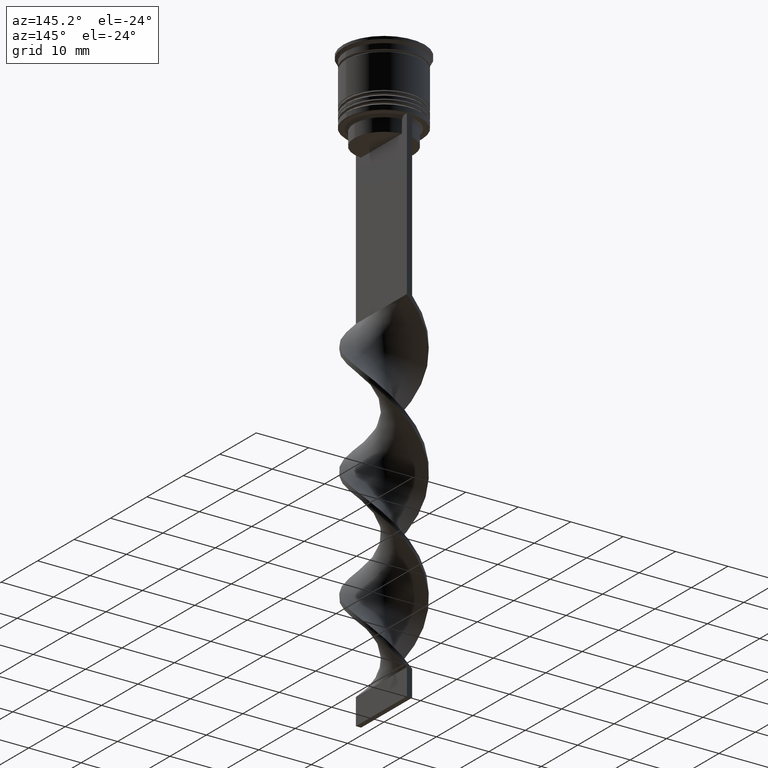
[diagram: clean part render]
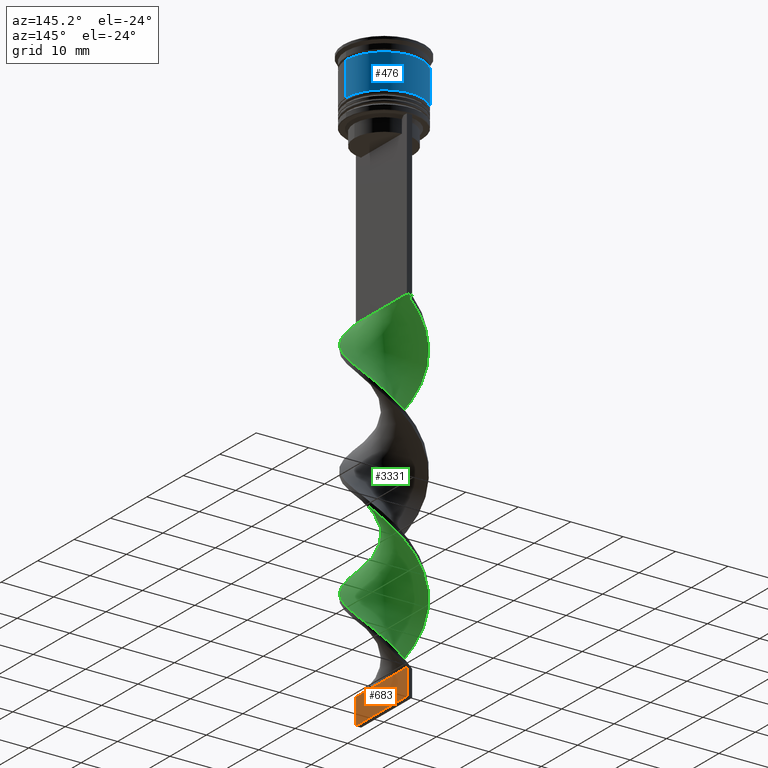
[diagram: same view with three faces highlighted in distinct colors, each labeled with its STEP entity id]
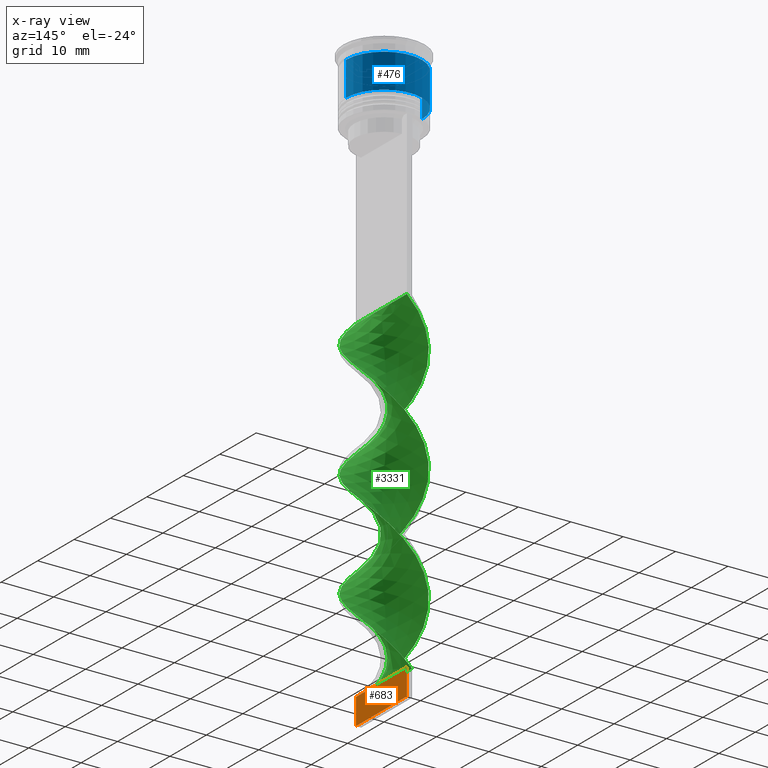
[diagram: x-ray of the same camera — body ghosted, the three highlighted faces saturated]
A machine part, auxiliary view with three faces highlighted in distinct colors.
The next image is the same camera in x-ray (body ghosted, the three faces saturated) — at least one of them is partly hidden behind the body in this view.
Their STEP definitions:

[orange] entity #683 — the highlighted planar face has unit normal (-1, 0, 0).
#10 = VECTOR ( 'NONE', #3414, 1000.000000000000000 ) ;
#71 = PLANE ( 'NONE',  #3364 ) ;
#137 = VECTOR ( 'NONE', #1067, 1000.000000000000000 ) ;
#177 = CARTESIAN_POINT ( 'NONE',  ( 0.5000000000000008882, 6.999999999999997335, -107.5000000000000000 ) ) ;
#181 = CARTESIAN_POINT ( 'NONE',  ( 0.4999999999999991673, -7.000000000000002665, -112.5000000000000000 ) ) ;
#270 = EDGE_CURVE ( 'NONE', #1339, #1523, #1974, .T. ) ;
#465 = LINE ( 'NONE', #2087, #137 ) ;
#469 = VECTOR ( 'NONE', #3056, 1000.000000000000000 ) ;
#525 = VERTEX_POINT ( 'NONE', #181 ) ;
#616 = ORIENTED_EDGE ( 'NONE', *, *, #762, .T. ) ;
#683 = ADVANCED_FACE ( 'NONE', ( #1455 ), #71, .F. ) ;
#745 = EDGE_CURVE ( 'NONE', #1339, #525, #1822, .T. ) ;
#760 = EDGE_LOOP ( 'NONE', ( #616, #2088, #2721, #1303 ) ) ;
#762 = EDGE_CURVE ( 'NONE', #1523, #1484, #2705, .T. ) ;
#1067 = DIRECTION ( 'NONE',  ( -0.000000000000000000, -0.000000000000000000, 1.000000000000000000 ) ) ;
#1169 = CARTESIAN_POINT ( 'NONE',  ( 0.5000000000000008882, 6.999999999999997335, -112.5000000000000000 ) ) ;
#1252 = CARTESIAN_POINT ( 'NONE',  ( 0.5000000000000008882, 6.999999999999997335, -107.5000000000000000 ) ) ;
#1303 = ORIENTED_EDGE ( 'NONE', *, *, #270, .T. ) ;
#1330 = CARTESIAN_POINT ( 'NONE',  ( 0.5000000000000008882, 6.999999999999997335, -112.5000000000000000 ) ) ;
#1339 = VERTEX_POINT ( 'NONE', #2330 ) ;
#1455 = FACE_OUTER_BOUND ( 'NONE', #760, .T. ) ;
#1484 = VERTEX_POINT ( 'NONE', #2947 ) ;
#1523 = VERTEX_POINT ( 'NONE', #1252 ) ;
#1549 = CARTESIAN_POINT ( 'NONE',  ( 0.4999999999999996669, -2.333333333333336590, -107.5000000000000000 ) ) ;
#1703 = CARTESIAN_POINT ( 'NONE',  ( 0.5000000000000008882, 6.999999999999997335, -112.5000000000000000 ) ) ;
#1822 = LINE ( 'NONE', #1330, #10 ) ;
#1974 = LINE ( 'NONE', #1703, #469 ) ;
#2087 = CARTESIAN_POINT ( 'NONE',  ( 0.4999999999999991673, -7.000000000000002665, -112.5000000000000000 ) ) ;
#2088 = ORIENTED_EDGE ( 'NONE', *, *, #2193, .F. ) ;
#2193 = EDGE_CURVE ( 'NONE', #525, #1484, #465, .T. ) ;
#2239 = DIRECTION ( 'NONE',  ( -1.000000000000000000, 1.239088197126290817E-16, 0.000000000000000000 ) ) ;
#2330 = CARTESIAN_POINT ( 'NONE',  ( 0.5000000000000008882, 6.999999999999997335, -112.5000000000000000 ) ) ;
#2397 = CARTESIAN_POINT ( 'NONE',  ( 0.5000000000000003331, 2.333333333333331261, -107.5000000000000000 ) ) ;
#2593 = CARTESIAN_POINT ( 'NONE',  ( 0.4999999999999991673, -7.000000000000002665, -107.5000000000000000 ) ) ;
#2705 = B_SPLINE_CURVE_WITH_KNOTS ( 'NONE', 3,
 ( #177, #2397, #1549, #2593 ),
 .UNSPECIFIED., .F., .F.,
 ( 4, 4 ),
 ( 0.000000000000000000, 1.000000000000000000 ),
 .UNSPECIFIED. ) ;
#2721 = ORIENTED_EDGE ( 'NONE', *, *, #745, .F. ) ;
#2787 = DIRECTION ( 'NONE',  ( -1.239088197126290817E-16, -1.000000000000000000, 0.000000000000000000 ) ) ;
#2947 = CARTESIAN_POINT ( 'NONE',  ( 0.4999999999999991673, -7.000000000000002665, -107.5000000000000000 ) ) ;
#3056 = DIRECTION ( 'NONE',  ( -0.000000000000000000, -0.000000000000000000, 1.000000000000000000 ) ) ;
#3364 = AXIS2_PLACEMENT_3D ( 'NONE', #1169, #2239, #2787 ) ;
#3414 = DIRECTION ( 'NONE',  ( -1.239088197126290817E-16, -1.000000000000000000, 0.000000000000000000 ) ) ;

[blue] entity #476 — the highlighted cylindrical surface (partial cylindrical patch) has radius 7.25 mm, axis along (-0, -0, 1).
#76 = VERTEX_POINT ( 'NONE', #673 ) ;
#144 = VERTEX_POINT ( 'NONE', #322 ) ;
#211 = CARTESIAN_POINT ( 'NONE',  ( -7.250000000000000888, 8.878689293818312046E-16, -9.000000000000001776 ) ) ;
#217 = DIRECTION ( 'NONE',  ( 1.000000000000000000, 0.000000000000000000, 0.000000000000000000 ) ) ;
#294 = CIRCLE ( 'NONE', #472, 7.250000000000000888 ) ;
#303 = ORIENTED_EDGE ( 'NONE', *, *, #557, .T. ) ;
#322 = CARTESIAN_POINT ( 'NONE',  ( 7.250000000000000888, 0.000000000000000000, -9.000000000000001776 ) ) ;
#333 = EDGE_CURVE ( 'NONE', #76, #3290, #1669, .T. ) ;
#472 = AXIS2_PLACEMENT_3D ( 'NONE', #2353, #1278, #3453 ) ;
#476 = ADVANCED_FACE ( 'NONE', ( #2120 ), #2898, .T. ) ;
#557 = EDGE_CURVE ( 'NONE', #144, #2522, #294, .T. ) ;
#673 = CARTESIAN_POINT ( 'NONE',  ( 7.249999999999997335, 0.000000000000000000, -2.500000000000000444 ) ) ;
#841 = DIRECTION ( 'NONE',  ( -0.000000000000000000, -0.000000000000000000, 1.000000000000000000 ) ) ;
#990 = AXIS2_PLACEMENT_3D ( 'NONE', #1735, #2006, #2805 ) ;
#1261 = DIRECTION ( 'NONE',  ( -0.000000000000000000, -0.000000000000000000, 1.000000000000000000 ) ) ;
#1278 = DIRECTION ( 'NONE',  ( -0.000000000000000000, -0.000000000000000000, 1.000000000000000000 ) ) ;
#1386 = CARTESIAN_POINT ( 'NONE',  ( -7.249999999999999112, 8.878689293818310074E-16, 0.000000000000000000 ) ) ;
#1435 = CARTESIAN_POINT ( 'NONE',  ( 7.249999999999999112, 0.000000000000000000, 0.000000000000000000 ) ) ;
#1497 = ORIENTED_EDGE ( 'NONE', *, *, #333, .F. ) ;
#1507 = LINE ( 'NONE', #1435, #2231 ) ;
#1540 = EDGE_LOOP ( 'NONE', ( #303, #2469, #1497, #3304 ) ) ;
#1669 = CIRCLE ( 'NONE', #990, 7.249999999999997335 ) ;
#1735 = CARTESIAN_POINT ( 'NONE',  ( 0.000000000000000000, 0.000000000000000000, -2.500000000000000444 ) ) ;
#1777 = EDGE_CURVE ( 'NONE', #2522, #3290, #3262, .T. ) ;
#2006 = DIRECTION ( 'NONE',  ( -0.000000000000000000, -0.000000000000000000, 1.000000000000000000 ) ) ;
#2028 = DIRECTION ( 'NONE',  ( -0.000000000000000000, -0.000000000000000000, 1.000000000000000000 ) ) ;
#2120 = FACE_OUTER_BOUND ( 'NONE', #1540, .T. ) ;
#2231 = VECTOR ( 'NONE', #2028, 1000.000000000000000 ) ;
#2353 = CARTESIAN_POINT ( 'NONE',  ( 0.000000000000000000, 0.000000000000000000, -9.000000000000001776 ) ) ;
#2363 = EDGE_CURVE ( 'NONE', #144, #76, #1507, .T. ) ;
#2469 = ORIENTED_EDGE ( 'NONE', *, *, #1777, .T. ) ;
#2522 = VERTEX_POINT ( 'NONE', #211 ) ;
#2725 = AXIS2_PLACEMENT_3D ( 'NONE', #3440, #1261, #217 ) ;
#2805 = DIRECTION ( 'NONE',  ( 1.000000000000000000, 0.000000000000000000, 0.000000000000000000 ) ) ;
#2821 = CARTESIAN_POINT ( 'NONE',  ( -7.249999999999997335, 8.878689293818308102E-16, -2.500000000000000444 ) ) ;
#2854 = VECTOR ( 'NONE', #841, 1000.000000000000000 ) ;
#2898 = CYLINDRICAL_SURFACE ( 'NONE', #2725, 7.249999999999999112 ) ;
#3262 = LINE ( 'NONE', #1386, #2854 ) ;
#3290 = VERTEX_POINT ( 'NONE', #2821 ) ;
#3304 = ORIENTED_EDGE ( 'NONE', *, *, #2363, .F. ) ;
#3440 = CARTESIAN_POINT ( 'NONE',  ( 0.000000000000000000, 0.000000000000000000, 0.000000000000000000 ) ) ;
#3453 = DIRECTION ( 'NONE',  ( 1.000000000000000000, 0.000000000000000000, 0.000000000000000000 ) ) ;

[green] entity #3331 — the highlighted face is a freeform B-spline surface patch.
#6 = CARTESIAN_POINT ( 'NONE',  ( 2.810334191479774812, 6.430553765594350324, -61.55128205128204399 ) ) ;
#26 = CARTESIAN_POINT ( 'NONE',  ( 6.722416142319168841, -2.014726087955042377, -94.37179487179486159 ) ) ;
#33 = CARTESIAN_POINT ( 'NONE',  ( 0.3499538825558265454, 7.060710991611127696, -64.01282051282051100 ) ) ;
#35 = CARTESIAN_POINT ( 'NONE',  ( 6.722416142319175059, 2.014726087955042821, -77.96153846153845279 ) ) ;
#48 = CARTESIAN_POINT ( 'NONE',  ( -4.944061684284418057, 5.052955718088663062, -49.24358974358973740 ) ) ;
#50 = CARTESIAN_POINT ( 'NONE',  ( 4.944061684284416280, 5.052955718088656845, -59.08974358974358410 ) ) ;
#52 = CARTESIAN_POINT ( 'NONE',  ( -2.160680558725933675, -6.676934889838586962, -63.19230769230768630 ) ) ;
#65 = CARTESIAN_POINT ( 'NONE',  ( -4.267603233600016921, 5.571136566318108052, -48.42307692307691269 ) ) ;
#79 = CARTESIAN_POINT ( 'NONE',  ( 2.029523600043933840, 6.771790116641152935, -105.0384615384615330 ) ) ;
#86 = CARTESIAN_POINT ( 'NONE',  ( -5.476854687890019058, 4.387945160064921524, -50.06410256410256210 ) ) ;
#96 = CARTESIAN_POINT ( 'NONE',  ( 4.267603233600016033, 5.571136566318101835, -102.5769230769230660 ) ) ;
#102 = CARTESIAN_POINT ( 'NONE',  ( 2.810334191479775257, -6.430553765594355653, -68.11538461538459899 ) ) ;
#106 = CARTESIAN_POINT ( 'NONE',  ( -3.591144782915618006, 6.089317414547553931, -90.26923076923077360 ) ) ;
#119 = CARTESIAN_POINT ( 'NONE',  ( -2.160680558725933675, -6.676934889838586962, -63.19230769230768630 ) ) ;
#121 = CARTESIAN_POINT ( 'NONE',  ( 1.349953882555823492, -6.939289008388866975, -86.98717948717948900 ) ) ;
#180 = CARTESIAN_POINT ( 'NONE',  ( -0.5000000000000008882, -7.000000000000002665, -107.5000000000000000 ) ) ;
#190 =( BOUNDED_CURVE ( )  B_SPLINE_CURVE ( 2, ( #273, #2969, #611, #2200, #1384, #1421, #2450, #2752, #1121, #3258, #866, #839, #2185, #574, #1889, #2419, #3278, #2714, #1665, #1353, #818, #852, #2730, #1368, #52, #1935, #1921, #1907, #1701, #2216, #2986, #3018, #3308, #592, #547, #1149, #304, #1650, #3004, #1405, #1955, #2471, #35, #2434, #1135, #2484, #3039, #257, #3506, #1083, #2155, #3237, #1635, #2700, #1717, #940, #2839, #106, #2030, #3109, #959, #3343, #688, #1740, #1773, #1491, #2257, #3399, #2316, #2296, #1205, #2275, #650, #2809, #379, #1475, #1240, #1224, #2012 ),
 .UNSPECIFIED., .F., .T. ) 
 B_SPLINE_CURVE_WITH_KNOTS ( ( 3, 2, 2, 2, 2, 2, 2, 2, 2, 2, 2, 2, 2, 2, 2, 2, 2, 2, 2, 2, 2, 2, 2, 2, 2, 2, 2, 2, 2, 2, 2, 2, 2, 2, 2, 2, 2, 2, 2, 3 ),
 ( 0.000000000000000000, 0.01923076923076923184, 0.03846153846153846367, 0.05769230769230768857, 0.07692307692307692735, 0.09615384615384615918, 0.1153846153846153771, 0.1346153846153846090, 0.1538461538461538547, 0.1730769230769230449, 0.1923076923076923184, 0.2115384615384615363, 0.2307692307692307543, 0.2500000000000000000, 0.2692307692307692180, 0.2884615384615384359, 0.3076923076923077094, 0.3269230769230769273, 0.3461538461538460898, 0.3653846153846153633, 0.3846153846153846367, 0.4038461538461539102, 0.4230769230769230727, 0.4423076923076922906, 0.4615384615384615086, 0.4807692307692307820, 0.5000000000000000000, 0.5192307692307692735, 0.5384615384615384359, 0.5576923076923077094, 0.5769230769230768718, 0.5961538461538461453, 0.6153846153846154188, 0.6346153846153845812, 0.6538461538461538547, 0.6730769230769230171, 0.6923076923076921796, 0.7115384615384615641, 0.7307692307692307265, 0.7500000000000000000 ),
 .UNSPECIFIED. ) 
 CURVE ( )  GEOMETRIC_REPRESENTATION_ITEM ( )  RATIONAL_B_SPLINE_CURVE ( ( 1.000000000000000000, 0.9927088740980539727, 1.000000000000000000, 0.9927088740980539727, 1.000000000000000000, 0.9927088740980539727, 1.000000000000000000, 0.9927088740980539727, 1.000000000000000000, 0.9927088740980539727, 1.000000000000000000, 0.9927088740980539727, 1.000000000000000000, 0.9927088740980539727, 1.000000000000000000, 0.9927088740980539727, 1.000000000000000000, 0.9927088740980539727, 1.000000000000000000, 0.9927088740980539727, 1.000000000000000000, 0.9927088740980539727, 1.000000000000000000, 0.9927088740980539727, 1.000000000000000000, 0.9927088740980539727, 1.000000000000000000, 0.9927088740980539727, 1.000000000000000000, 0.9927088740980539727, 1.000000000000000000, 0.9927088740980539727, 1.000000000000000000, 0.9927088740980539727, 1.000000000000000000, 0.9927088740980539727, 1.000000000000000000, 0.9927088740980539727, 1.000000000000000000, 0.9927088740980539727, 1.000000000000000000, 0.9927088740980539727, 1.000000000000000000, 0.9927088740980539727, 1.000000000000000000, 0.9927088740980539727, 1.000000000000000000, 0.9927088740980539727, 1.000000000000000000, 0.9927088740980539727, 1.000000000000000000, 0.9927088740980539727, 1.000000000000000000, 0.9927088740980539727, 1.000000000000000000, 0.9927088740980539727, 1.000000000000000000, 0.9927088740980539727, 1.000000000000000000, 0.9927088740980539727, 1.000000000000000000, 0.9927088740980539727, 1.000000000000000000, 0.9927088740980539727, 1.000000000000000000, 0.9927088740980539727, 1.000000000000000000, 0.9927088740980539727, 1.000000000000000000, 0.9927088740980539727, 1.000000000000000000, 0.9927088740980539727, 1.000000000000000000, 0.9927088740980539727, 1.000000000000000000, 0.9927088740980539727, 1.000000000000000000, 0.9927088740980539727, 1.000000000000000000 ) ) 
 REPRESENTATION_ITEM ( '' )  );
#207 = CARTESIAN_POINT ( 'NONE',  ( -3.591144782915618006, 6.089317414547553042, -90.26923076923075939 ) ) ;
#223 = CARTESIAN_POINT ( 'NONE',  ( -6.044919434621171206, 3.564961294171262285, -71.39743589743588359 ) ) ;
#242 = CARTESIAN_POINT ( 'NONE',  ( -6.044919434621174759, -3.564961294171263173, -100.9358974358974308 ) ) ;
#254 = CARTESIAN_POINT ( 'NONE',  ( -5.016113981771113117, 4.908013908077309750, -69.75641025641024839 ) ) ;
#257 = CARTESIAN_POINT ( 'NONE',  ( 4.420173199369935801, 5.517080415812871230, -82.06410256410255499 ) ) ;
#263 = CARTESIAN_POINT ( 'NONE',  ( 6.367811255276634164, 2.949742330640454657, -56.62820512820513130 ) ) ;
#271 = CARTESIAN_POINT ( 'NONE',  ( 1.349953882555823492, -6.939289008388866975, -44.32051282051282470 ) ) ;
#273 = CARTESIAN_POINT ( 'NONE',  ( 0.5000000000000000000, 7.000000000000002665, -43.50000000000000000 ) ) ;
#280 = CARTESIAN_POINT ( 'NONE',  ( 4.944061684284416280, 5.052955718088656845, -59.08974358974359120 ) ) ;
#281 = CARTESIAN_POINT ( 'NONE',  ( -0.4999999999999991673, 6.999999999999997335, -107.5000000000000000 ) ) ;
#285 = CARTESIAN_POINT ( 'NONE',  ( 2.810334191479774812, 6.430553765594350324, -61.55128205128204399 ) ) ;
#301 = CARTESIAN_POINT ( 'NONE',  ( -6.367811255276633275, -2.949742330640455545, -77.96153846153845279 ) ) ;
#304 = CARTESIAN_POINT ( 'NONE',  ( 6.367811255276637716, -2.949742330640459542, -73.03846153846153300 ) ) ;
#320 = CARTESIAN_POINT ( 'NONE',  ( 6.888693778558713454, 1.340111198836287043, -54.98717948717948190 ) ) ;
#329 = CARTESIAN_POINT ( 'NONE',  ( 6.044919434621171206, -3.564961294171262285, -92.73076923076922640 ) ) ;
#335 = CARTESIAN_POINT ( 'NONE',  ( -6.477784105070046650, -2.830975188000774079, -57.44871794871794890 ) ) ;
#338 = CARTESIAN_POINT ( 'NONE',  ( 6.722416142319168841, -2.014726087955042377, -94.37179487179486159 ) ) ;
#346 = CARTESIAN_POINT ( 'NONE',  ( -6.722416142319168841, 2.014726087955043266, -73.03846153846153300 ) ) ;
#354 = CARTESIAN_POINT ( 'NONE',  ( -6.967048179568301691, -1.198476987909310898, -55.80769230769230660 ) ) ;
#367 = CARTESIAN_POINT ( 'NONE',  ( -0.3499538825558274335, -7.060710991611127696, -85.34615384615383959 ) ) ;
#376 = CARTESIAN_POINT ( 'NONE',  ( -5.016113981771120223, -4.908013908077310639, -59.91025641025640880 ) ) ;
#378 = CARTESIAN_POINT ( 'NONE',  ( 3.695790217132983280, -5.965830593550583316, -89.44871794871794179 ) ) ;
#379 = CARTESIAN_POINT ( 'NONE',  ( -3.695790217132986832, -5.965830593550586869, -104.2179487179487012 ) ) ;
#392 = CARTESIAN_POINT ( 'NONE',  ( -0.5000000000000008882, -7.000000000000002665, -64.83333333333332860 ) ) ;
#394 = CARTESIAN_POINT ( 'NONE',  ( -2.810334191479778365, -6.430553765594348548, -82.88461538461537259 ) ) ;
#408 = CARTESIAN_POINT ( 'NONE',  ( 6.009647691495618282, -3.722934602041183094, -72.21794871794871540 ) ) ;
#409 = CARTESIAN_POINT ( 'NONE',  ( 6.367811255276634164, 2.949742330640454657, -99.29487179487178139 ) ) ;
#455 = VERTEX_POINT ( 'NONE', #2334 ) ;
#473 = CARTESIAN_POINT ( 'NONE',  ( 0.3499538825558265454, 7.060710991611127696, -64.01282051282051100 ) ) ;
#494 = CARTESIAN_POINT ( 'NONE',  ( -6.477784105070046650, -2.830975188000774079, -100.1153846153846274 ) ) ;
#511 = ORIENTED_EDGE ( 'NONE', *, *, #633, .F. ) ;
#514 = CARTESIAN_POINT ( 'NONE',  ( 5.016113981771114005, -4.908013908077308862, -48.42307692307691269 ) ) ;
#516 = CARTESIAN_POINT ( 'NONE',  ( -0.5000000000000003331, -2.333333333333336590, -107.5000000000000000 ) ) ;
#532 = CARTESIAN_POINT ( 'NONE',  ( 6.725974819057651821, 2.176550059239734658, -55.80769230769230660 ) ) ;
#547 = CARTESIAN_POINT ( 'NONE',  ( 5.476854687890019058, -4.387945160064921524, -71.39743589743588359 ) ) ;
#553 = CARTESIAN_POINT ( 'NONE',  ( -2.971407234896040084, -6.414580771288303396, -105.0384615384615330 ) ) ;
#565 = CARTESIAN_POINT ( 'NONE',  ( -6.725974819057652709, -2.176550059239732438, -77.14102564102563520 ) ) ;
#573 = CARTESIAN_POINT ( 'NONE',  ( -6.722416142319168841, 2.014726087955043266, -73.03846153846153300 ) ) ;
#574 = CARTESIAN_POINT ( 'NONE',  ( -7.051412738059782193, 0.5036723384328418707, -54.16666666666666430 ) ) ;
#589 = CARTESIAN_POINT ( 'NONE',  ( 6.477784105070041321, -2.830975188000772746, -50.88461538461537970 ) ) ;
#592 = CARTESIAN_POINT ( 'NONE',  ( 4.944061684284417169, -5.052955718088663062, -70.57692307692306599 ) ) ;
#600 = CARTESIAN_POINT ( 'NONE',  ( 2.160680558725929679, -6.676934889838582521, -87.80769230769230660 ) ) ;
#607 = CARTESIAN_POINT ( 'NONE',  ( 0.5000000000000000000, 7.000000000000002665, -43.50000000000000000 ) ) ;
#609 = CARTESIAN_POINT ( 'NONE',  ( 2.029523600043933840, 6.771790116641152935, -62.37179487179486870 ) ) ;
#611 = CARTESIAN_POINT ( 'NONE',  ( -1.189738741299878777, 6.916250554126145644, -45.14102564102563520 ) ) ;
#618 = CARTESIAN_POINT ( 'NONE',  ( 5.476854687890015505, 4.387945160064917083, -100.9358974358974308 ) ) ;
#628 = CARTESIAN_POINT ( 'NONE',  ( -6.044919434621174759, -3.564961294171263173, -58.26923076923076650 ) ) ;
#633 = EDGE_CURVE ( 'NONE', #2500, #2146, #190, .T. ) ;
#645 = CARTESIAN_POINT ( 'NONE',  ( 4.420173199369935801, 5.517080415812870342, -82.06410256410255499 ) ) ;
#648 = CARTESIAN_POINT ( 'NONE',  ( 1.189738741299880109, 6.916250554126139427, -105.8589743589743506 ) ) ;
#650 = CARTESIAN_POINT ( 'NONE',  ( -5.016113981771120223, -4.908013908077310639, -102.5769230769230660 ) ) ;
#668 = CARTESIAN_POINT ( 'NONE',  ( 6.967048179568298139, -1.198476987909309788, -95.19230769230769340 ) ) ;
#685 = CARTESIAN_POINT ( 'NONE',  ( 4.944061684284417169, -5.052955718088663062, -70.57692307692306599 ) ) ;
#687 = CARTESIAN_POINT ( 'NONE',  ( 4.420173199369930472, -5.517080415812867678, -90.26923076923077360 ) ) ;
#688 = CARTESIAN_POINT ( 'NONE',  ( -6.367811255276637716, 2.949742330640459098, -94.37179487179486159 ) ) ;
#729 =( BOUNDED_CURVE ( )  B_SPLINE_CURVE ( 2, ( #1351, #271, #1634, #2448, #837, #2483, #2418, #1686, #1649, #589, #2214, #1402, #1886, #2699, #320, #2727, #1419, #1920, #3235, #50, #3016, #2184, #285, #609, #1147, #33, #2678, #2468, #3277, #3305, #882, #1366, #254, #851, #3037, #3517, #573, #1906, #3504, #1097, #1663, #1082, #301, #2166, #1134, #2198, #3291, #3357, #394, #1699, #1715, #899, #2045, #121, #2808, #1771, #378, #687, #1473, #2523, #1222, #2838, #338, #668, #2823, #3095, #2294, #2255, #409, #1984, #2539, #2237, #2767, #3070, #3341, #1167, #648, #1969, #3383 ),
 .UNSPECIFIED., .F., .T. ) 
 B_SPLINE_CURVE_WITH_KNOTS ( ( 3, 2, 2, 2, 2, 2, 2, 2, 2, 2, 2, 2, 2, 2, 2, 2, 2, 2, 2, 2, 2, 2, 2, 2, 2, 2, 2, 2, 2, 2, 2, 2, 2, 2, 2, 2, 2, 2, 2, 3 ),
 ( 0.000000000000000000, 0.01923076923076923184, 0.03846153846153846367, 0.05769230769230768857, 0.07692307692307692735, 0.09615384615384615918, 0.1153846153846153771, 0.1346153846153846090, 0.1538461538461538547, 0.1730769230769230449, 0.1923076923076923184, 0.2115384615384615363, 0.2307692307692307543, 0.2500000000000000000, 0.2692307692307692180, 0.2884615384615384359, 0.3076923076923077094, 0.3269230769230769273, 0.3461538461538460898, 0.3653846153846153633, 0.3846153846153846367, 0.4038461538461539102, 0.4230769230769230727, 0.4423076923076922906, 0.4615384615384615086, 0.4807692307692307820, 0.5000000000000000000, 0.5192307692307692735, 0.5384615384615384359, 0.5576923076923077094, 0.5769230769230768718, 0.5961538461538461453, 0.6153846153846154188, 0.6346153846153845812, 0.6538461538461538547, 0.6730769230769230171, 0.6923076923076921796, 0.7115384615384615641, 0.7307692307692307265, 0.7500000000000000000 ),
 .UNSPECIFIED. ) 
 CURVE ( )  GEOMETRIC_REPRESENTATION_ITEM ( )  RATIONAL_B_SPLINE_CURVE ( ( 1.000000000000000000, 0.9927088740980539727, 1.000000000000000000, 0.9927088740980539727, 1.000000000000000000, 0.9927088740980539727, 1.000000000000000000, 0.9927088740980539727, 1.000000000000000000, 0.9927088740980539727, 1.000000000000000000, 0.9927088740980539727, 1.000000000000000000, 0.9927088740980539727, 1.000000000000000000, 0.9927088740980539727, 1.000000000000000000, 0.9927088740980539727, 1.000000000000000000, 0.9927088740980539727, 1.000000000000000000, 0.9927088740980539727, 1.000000000000000000, 0.9927088740980539727, 1.000000000000000000, 0.9927088740980539727, 1.000000000000000000, 0.9927088740980539727, 1.000000000000000000, 0.9927088740980539727, 1.000000000000000000, 0.9927088740980539727, 1.000000000000000000, 0.9927088740980539727, 1.000000000000000000, 0.9927088740980539727, 1.000000000000000000, 0.9927088740980539727, 1.000000000000000000, 0.9927088740980539727, 1.000000000000000000, 0.9927088740980539727, 1.000000000000000000, 0.9927088740980539727, 1.000000000000000000, 0.9927088740980539727, 1.000000000000000000, 0.9927088740980539727, 1.000000000000000000, 0.9927088740980539727, 1.000000000000000000, 0.9927088740980539727, 1.000000000000000000, 0.9927088740980539727, 1.000000000000000000, 0.9927088740980539727, 1.000000000000000000, 0.9927088740980539727, 1.000000000000000000, 0.9927088740980539727, 1.000000000000000000, 0.9927088740980539727, 1.000000000000000000, 0.9927088740980539727, 1.000000000000000000, 0.9927088740980539727, 1.000000000000000000, 0.9927088740980539727, 1.000000000000000000, 0.9927088740980539727, 1.000000000000000000, 0.9927088740980539727, 1.000000000000000000, 0.9927088740980539727, 1.000000000000000000, 0.9927088740980539727, 1.000000000000000000, 0.9927088740980539727, 1.000000000000000000 ) ) 
 REPRESENTATION_ITEM ( '' )  );
#773 = CARTESIAN_POINT ( 'NONE',  ( 4.420173199369930472, -5.517080415812866789, -47.60256410256408799 ) ) ;
#796 = CARTESIAN_POINT ( 'NONE',  ( -3.695790217132986832, -5.965830593550586869, -104.2179487179487012 ) ) ;
#811 = CARTESIAN_POINT ( 'NONE',  ( -5.016113981771120223, -4.908013908077310639, -102.5769230769230660 ) ) ;
#818 = CARTESIAN_POINT ( 'NONE',  ( -5.016113981771120223, -4.908013908077310639, -59.91025641025640880 ) ) ;
#824 = CARTESIAN_POINT ( 'NONE',  ( 5.612054764172300203, -4.298947400341750047, -49.24358974358973740 ) ) ;
#831 = CARTESIAN_POINT ( 'NONE',  ( 0.5000000000000000000, -6.999999999999997335, -43.50000000000000000 ) ) ;
#837 = CARTESIAN_POINT ( 'NONE',  ( 3.695790217132983280, -5.965830593550583316, -46.78205128205127750 ) ) ;
#839 = CARTESIAN_POINT ( 'NONE',  ( -6.725974819057656262, 2.176550059239736878, -52.52564102564102910 ) ) ;
#845 = CARTESIAN_POINT ( 'NONE',  ( 7.051412738059776864, 0.5036723384328409825, -54.16666666666665719 ) ) ;
#851 = CARTESIAN_POINT ( 'NONE',  ( -5.612054764172298427, 4.298947400341751823, -70.57692307692306599 ) ) ;
#852 = CARTESIAN_POINT ( 'NONE',  ( -4.420173199369934913, -5.517080415812871230, -60.73076923076922640 ) ) ;
#853 = B_SPLINE_CURVE_WITH_KNOTS ( 'NONE', 3,
 ( #1111, #516, #2997, #281 ),
 .UNSPECIFIED., .F., .F.,
 ( 4, 4 ),
 ( 0.000000000000000000, 1.000000000000000000 ),
 .UNSPECIFIED. ) ;
#866 = CARTESIAN_POINT ( 'NONE',  ( -6.367811255276637716, 2.949742330640459098, -51.70512820512820440 ) ) ;
#873 = CARTESIAN_POINT ( 'NONE',  ( 7.051412738059776864, 0.5036723384328409825, -96.83333333333332860 ) ) ;
#879 = FACE_OUTER_BOUND ( 'NONE', #1790, .T. ) ;
#882 = CARTESIAN_POINT ( 'NONE',  ( -3.695790217132982836, 5.965830593550583316, -68.11538461538459899 ) ) ;
#899 = CARTESIAN_POINT ( 'NONE',  ( -0.3499538825558274335, -7.060710991611127696, -85.34615384615385381 ) ) ;
#909 = CARTESIAN_POINT ( 'NONE',  ( 2.971407234896035199, -6.414580771288298955, -88.62820512820513841 ) ) ;
#935 = CARTESIAN_POINT ( 'NONE',  ( 3.695790217132989941, 5.965830593550585093, -82.88461538461537259 ) ) ;
#940 = CARTESIAN_POINT ( 'NONE',  ( -2.029523600043933396, 6.771790116641159152, -88.62820512820512420 ) ) ;
#956 = CARTESIAN_POINT ( 'NONE',  ( -3.591144782915618006, 6.089317414547553042, -47.60256410256408799 ) ) ;
#959 = CARTESIAN_POINT ( 'NONE',  ( -5.476854687890019058, 4.387945160064921524, -92.73076923076922640 ) ) ;
#1039 = CARTESIAN_POINT ( 'NONE',  ( -2.971407234896032978, 6.414580771288299843, -67.29487179487178139 ) ) ;
#1057 = CARTESIAN_POINT ( 'NONE',  ( -7.009230458814042386, -0.3474023247382335144, -97.65384615384614619 ) ) ;
#1063 = CARTESIAN_POINT ( 'NONE',  ( 0.5000000000000000000, 7.000000000000002665, -43.50000000000000000 ) ) ;
#1075 = CARTESIAN_POINT ( 'NONE',  ( -2.160680558725933675, -6.676934889838586962, -105.8589743589743506 ) ) ;
#1082 = CARTESIAN_POINT ( 'NONE',  ( -6.725974819057652709, -2.176550059239732438, -77.14102564102563520 ) ) ;
#1083 = CARTESIAN_POINT ( 'NONE',  ( 2.971407234896040528, 6.414580771288303396, -83.70512820512820440 ) ) ;
#1091 = CARTESIAN_POINT ( 'NONE',  ( 0.5000000000000000000, 7.000000000000002665, -86.16666666666667140 ) ) ;
#1097 = CARTESIAN_POINT ( 'NONE',  ( -7.051412738059777752, -0.5036723384328402053, -75.50000000000000000 ) ) ;
#1105 = CARTESIAN_POINT ( 'NONE',  ( -4.420173199369934913, -5.517080415812870342, -103.3974358974358694 ) ) ;
#1111 = CARTESIAN_POINT ( 'NONE',  ( -0.5000000000000008882, -7.000000000000002665, -107.5000000000000000 ) ) ;
#1121 = CARTESIAN_POINT ( 'NONE',  ( -5.476854687890019058, 4.387945160064921524, -50.06410256410256210 ) ) ;
#1134 = CARTESIAN_POINT ( 'NONE',  ( -5.476854687890015505, -4.387945160064916195, -79.60256410256410220 ) ) ;
#1135 = CARTESIAN_POINT ( 'NONE',  ( 6.044919434621175647, 3.564961294171262285, -79.60256410256410220 ) ) ;
#1140 = CARTESIAN_POINT ( 'NONE',  ( 2.810334191479774812, 6.430553765594350324, -104.2179487179487012 ) ) ;
#1145 = CARTESIAN_POINT ( 'NONE',  ( -5.612054764172305532, -4.298947400341750935, -59.08974358974359120 ) ) ;
#1147 = CARTESIAN_POINT ( 'NONE',  ( 1.189738741299880109, 6.916250554126139427, -63.19230769230768630 ) ) ;
#1149 = CARTESIAN_POINT ( 'NONE',  ( 6.009647691495618282, -3.722934602041183094, -72.21794871794871540 ) ) ;
#1165 = CARTESIAN_POINT ( 'NONE',  ( 0.3499538825558224375, -7.060710991611133025, -65.65384615384614619 ) ) ;
#1167 = CARTESIAN_POINT ( 'NONE',  ( 2.029523600043933840, 6.771790116641152935, -105.0384615384615188 ) ) ;
#1177 = CARTESIAN_POINT ( 'NONE',  ( -0.4999999999999991673, 6.999999999999997335, -107.5000000000000000 ) ) ;
#1181 = CARTESIAN_POINT ( 'NONE',  ( -6.725974819057656262, 2.176550059239737323, -52.52564102564103621 ) ) ;
#1194 = CARTESIAN_POINT ( 'NONE',  ( -7.009230458814037057, 0.3474023247382377333, -74.67948717948718240 ) ) ;
#1201 = CARTESIAN_POINT ( 'NONE',  ( 7.051412738059782193, -0.5036723384328427588, -75.49999999999998579 ) ) ;
#1205 = CARTESIAN_POINT ( 'NONE',  ( -6.044919434621174759, -3.564961294171263173, -100.9358974358974308 ) ) ;
#1219 = CARTESIAN_POINT ( 'NONE',  ( -7.051412738059782193, 0.5036723384328418707, -54.16666666666665719 ) ) ;
#1222 = CARTESIAN_POINT ( 'NONE',  ( 6.044919434621171206, -3.564961294171262285, -92.73076923076922640 ) ) ;
#1224 = CARTESIAN_POINT ( 'NONE',  ( -1.349953882555827045, -6.939289008388872304, -106.6794871794871824 ) ) ;
#1240 = CARTESIAN_POINT ( 'NONE',  ( -2.160680558725933675, -6.676934889838586962, -105.8589743589743506 ) ) ;
#1304 = CARTESIAN_POINT ( 'NONE',  ( -7.051412738059782193, 0.5036723384328418707, -96.83333333333332860 ) ) ;
#1323 = CARTESIAN_POINT ( 'NONE',  ( -1.349953882555827045, -6.939289008388872304, -106.6794871794871682 ) ) ;
#1342 = CARTESIAN_POINT ( 'NONE',  ( -6.725974819057656262, 2.176550059239737323, -95.19230769230769340 ) ) ;
#1351 = CARTESIAN_POINT ( 'NONE',  ( 0.5000000000000000000, -6.999999999999997335, -43.50000000000000000 ) ) ;
#1353 = CARTESIAN_POINT ( 'NONE',  ( -5.612054764172305532, -4.298947400341750935, -59.08974358974358410 ) ) ;
#1359 = CARTESIAN_POINT ( 'NONE',  ( -5.612054764172305532, -4.298947400341750935, -101.7564102564102484 ) ) ;
#1366 = CARTESIAN_POINT ( 'NONE',  ( -4.420173199369929584, 5.517080415812868566, -68.93589743589743080 ) ) ;
#1368 = CARTESIAN_POINT ( 'NONE',  ( -2.971407234896039640, -6.414580771288303396, -62.37179487179486870 ) ) ;
#1375 = CARTESIAN_POINT ( 'NONE',  ( 4.267603233600016033, 5.571136566318101835, -59.91025641025640880 ) ) ;
#1384 = CARTESIAN_POINT ( 'NONE',  ( -2.810334191479775701, 6.430553765594355653, -46.78205128205127750 ) ) ;
#1402 = CARTESIAN_POINT ( 'NONE',  ( 6.967048179568298139, -1.198476987909309788, -52.52564102564102910 ) ) ;
#1405 = CARTESIAN_POINT ( 'NONE',  ( 7.051412738059782193, -0.5036723384328427588, -75.50000000000000000 ) ) ;
#1419 = CARTESIAN_POINT ( 'NONE',  ( 6.367811255276634164, 2.949742330640454657, -56.62820512820513130 ) ) ;
#1421 = CARTESIAN_POINT ( 'NONE',  ( -3.591144782915618006, 6.089317414547553931, -47.60256410256409509 ) ) ;
#1427 = CARTESIAN_POINT ( 'NONE',  ( 7.009230458814037057, -0.3474023247382352353, -96.01282051282051100 ) ) ;
#1432 = CARTESIAN_POINT ( 'NONE',  ( -6.722416142319174170, -2.014726087955041933, -56.62820512820513130 ) ) ;
#1442 = CARTESIAN_POINT ( 'NONE',  ( 5.016113981771114005, -4.908013908077308862, -91.08974358974359120 ) ) ;
#1449 = CARTESIAN_POINT ( 'NONE',  ( 5.476854687890019058, -4.387945160064921524, -71.39743589743588359 ) ) ;
#1463 = CARTESIAN_POINT ( 'NONE',  ( 6.009647691495616506, 3.722934602041176433, -100.1153846153846274 ) ) ;
#1473 = CARTESIAN_POINT ( 'NONE',  ( 5.016113981771114005, -4.908013908077308862, -91.08974358974359120 ) ) ;
#1475 = CARTESIAN_POINT ( 'NONE',  ( -2.971407234896039640, -6.414580771288303396, -105.0384615384615188 ) ) ;
#1489 = CARTESIAN_POINT ( 'NONE',  ( -6.009647691495620947, 3.722934602041179986, -50.88461538461538680 ) ) ;
#1491 = CARTESIAN_POINT ( 'NONE',  ( -7.051412738059782193, 0.5036723384328418707, -96.83333333333332860 ) ) ;
#1505 = CARTESIAN_POINT ( 'NONE',  ( -1.189738741299878777, 6.916250554126145644, -45.14102564102563520 ) ) ;
#1576 = CARTESIAN_POINT ( 'NONE',  ( -0.4999999999999991673, 6.999999999999997335, -64.83333333333332860 ) ) ;
#1590 = CARTESIAN_POINT ( 'NONE',  ( -5.016113981771113117, 4.908013908077309750, -69.75641025641024839 ) ) ;
#1604 = CARTESIAN_POINT ( 'NONE',  ( -6.009647691495620947, 3.722934602041179986, -93.55128205128204399 ) ) ;
#1624 = CARTESIAN_POINT ( 'NONE',  ( -0.3499538825558239363, 7.060710991611133025, -86.98717948717948900 ) ) ;
#1634 = CARTESIAN_POINT ( 'NONE',  ( 2.160680558725929679, -6.676934889838582521, -45.14102564102563520 ) ) ;
#1635 = CARTESIAN_POINT ( 'NONE',  ( 0.5000000000000000000, 7.000000000000002665, -86.16666666666667140 ) ) ;
#1643 = CARTESIAN_POINT ( 'NONE',  ( 6.009647691495616506, 3.722934602041176433, -57.44871794871794890 ) ) ;
#1647 = EDGE_CURVE ( 'NONE', #2146, #2306, #853, .T. ) ;
#1649 = CARTESIAN_POINT ( 'NONE',  ( 6.044919434621171206, -3.564961294171262285, -50.06410256410256210 ) ) ;
#1650 = CARTESIAN_POINT ( 'NONE',  ( 6.725974819057657150, -2.176550059239735546, -73.85897435897436480 ) ) ;
#1657 = CARTESIAN_POINT ( 'NONE',  ( -6.888693778558715231, -1.340111198836283046, -76.32051282051281760 ) ) ;
#1663 = CARTESIAN_POINT ( 'NONE',  ( -6.888693778558715231, -1.340111198836283046, -76.32051282051281760 ) ) ;
#1665 = CARTESIAN_POINT ( 'NONE',  ( -6.044919434621174759, -3.564961294171263173, -58.26923076923076650 ) ) ;
#1674 = CARTESIAN_POINT ( 'NONE',  ( 5.612054764172300203, -4.298947400341750047, -91.91025641025643722 ) ) ;
#1686 = CARTESIAN_POINT ( 'NONE',  ( 5.612054764172300203, -4.298947400341750047, -49.24358974358974450 ) ) ;
#1693 = CARTESIAN_POINT ( 'NONE',  ( 3.695790217132983280, -5.965830593550583316, -89.44871794871794179 ) ) ;
#1699 = CARTESIAN_POINT ( 'NONE',  ( -2.029523600043934728, -6.771790116641152935, -83.70512820512820440 ) ) ;
#1701 = CARTESIAN_POINT ( 'NONE',  ( 1.189738741299876557, -6.916250554126146532, -66.47435897435896379 ) ) ;
#1708 = CARTESIAN_POINT ( 'NONE',  ( -2.810334191479778365, -6.430553765594348548, -82.88461538461537259 ) ) ;
#1715 = CARTESIAN_POINT ( 'NONE',  ( -1.189738741299884106, -6.916250554126139427, -84.52564102564103621 ) ) ;
#1717 = CARTESIAN_POINT ( 'NONE',  ( -1.189738741299878777, 6.916250554126145644, -87.80769230769230660 ) ) ;
#1734 = CARTESIAN_POINT ( 'NONE',  ( 2.971407234896040972, 6.414580771288303396, -83.70512820512820440 ) ) ;
#1740 = CARTESIAN_POINT ( 'NONE',  ( -6.725974819057656262, 2.176550059239736878, -95.19230769230769340 ) ) ;
#1769 = CARTESIAN_POINT ( 'NONE',  ( 6.725974819057657150, -2.176550059239735990, -73.85897435897436480 ) ) ;
#1771 = CARTESIAN_POINT ( 'NONE',  ( 2.971407234896035643, -6.414580771288298955, -88.62820512820512420 ) ) ;
#1773 = CARTESIAN_POINT ( 'NONE',  ( -6.888693778558718783, 1.340111198836290152, -96.01282051282051100 ) ) ;
#1790 = EDGE_LOOP ( 'NONE', ( #2687, #2453, #2407, #511 ) ) ;
#1848 = CARTESIAN_POINT ( 'NONE',  ( -2.160680558725927458, 6.676934889838583409, -66.47435897435896379 ) ) ;
#1863 = CARTESIAN_POINT ( 'NONE',  ( 0.5000000000000000000, -6.999999999999997335, -43.50000000000000000 ) ) ;
#1879 = CARTESIAN_POINT ( 'NONE',  ( 6.967048179568297250, -1.198476987909310010, -52.52564102564103621 ) ) ;
#1886 = CARTESIAN_POINT ( 'NONE',  ( 7.009230458814037057, -0.3474023247382352353, -53.34615384615383959 ) ) ;
#1889 = CARTESIAN_POINT ( 'NONE',  ( -7.009230458814042386, -0.3474023247382335144, -54.98717948717948190 ) ) ;
#1897 = CARTESIAN_POINT ( 'NONE',  ( -2.810334191479775701, 6.430553765594355653, -89.44871794871794179 ) ) ;
#1906 = CARTESIAN_POINT ( 'NONE',  ( -6.967048179568297250, 1.198476987909309344, -73.85897435897436480 ) ) ;
#1907 = CARTESIAN_POINT ( 'NONE',  ( 0.3499538825558224375, -7.060710991611133025, -65.65384615384614619 ) ) ;
#1913 = CARTESIAN_POINT ( 'NONE',  ( -3.591144782915616673, -6.089317414547548601, -82.06410256410255499 ) ) ;
#1920 = CARTESIAN_POINT ( 'NONE',  ( 6.009647691495615618, 3.722934602041176877, -57.44871794871794890 ) ) ;
#1921 = CARTESIAN_POINT ( 'NONE',  ( -0.5000000000000008882, -7.000000000000002665, -64.83333333333332860 ) ) ;
#1926 = CARTESIAN_POINT ( 'NONE',  ( 4.944061684284416280, 5.052955718088656845, -101.7564102564102484 ) ) ;
#1935 = CARTESIAN_POINT ( 'NONE',  ( -1.349953882555827045, -6.939289008388872304, -64.01282051282051100 ) ) ;
#1943 = CARTESIAN_POINT ( 'NONE',  ( -2.029523600043934728, -6.771790116641152935, -83.70512820512820440 ) ) ;
#1953 = CARTESIAN_POINT ( 'NONE',  ( 6.367811255276637716, -2.949742330640459542, -73.03846153846153300 ) ) ;
#1955 = CARTESIAN_POINT ( 'NONE',  ( 7.009230458814042386, 0.3474023247382295732, -76.32051282051281760 ) ) ;
#1969 = CARTESIAN_POINT ( 'NONE',  ( 0.3499538825558265454, 7.060710991611127696, -106.6794871794871824 ) ) ;
#1978 = CARTESIAN_POINT ( 'NONE',  ( 1.349953882555823492, -6.939289008388866975, -86.98717948717948900 ) ) ;
#1984 = CARTESIAN_POINT ( 'NONE',  ( 6.009647691495615618, 3.722934602041176877, -100.1153846153846132 ) ) ;
#2005 = CARTESIAN_POINT ( 'NONE',  ( 2.160680558725937228, 6.676934889838585185, -84.52564102564103621 ) ) ;
#2012 = CARTESIAN_POINT ( 'NONE',  ( -0.5000000000000008882, -7.000000000000002665, -107.5000000000000000 ) ) ;
#2025 = CARTESIAN_POINT ( 'NONE',  ( -4.420173199369934913, -5.517080415812870342, -60.73076923076922640 ) ) ;
#2030 = CARTESIAN_POINT ( 'NONE',  ( -4.267603233600016921, 5.571136566318108052, -91.08974358974359120 ) ) ;
#2045 = CARTESIAN_POINT ( 'NONE',  ( 0.5000000000000000000, -6.999999999999997335, -86.16666666666667140 ) ) ;
#2107 = CARTESIAN_POINT ( 'NONE',  ( -3.695790217132982836, 5.965830593550583316, -68.11538461538459899 ) ) ;
#2130 = CARTESIAN_POINT ( 'NONE',  ( 1.349953882555827933, 6.939289008388872304, -85.34615384615383959 ) ) ;
#2146 = VERTEX_POINT ( 'NONE', #180 ) ;
#2148 = CARTESIAN_POINT ( 'NONE',  ( 6.044919434621171206, -3.564961294171262285, -50.06410256410256210 ) ) ;
#2155 = CARTESIAN_POINT ( 'NONE',  ( 2.160680558725937228, 6.676934889838585185, -84.52564102564103621 ) ) ;
#2161 = CARTESIAN_POINT ( 'NONE',  ( -4.267603233600016921, 5.571136566318108052, -91.08974358974359120 ) ) ;
#2166 = CARTESIAN_POINT ( 'NONE',  ( -6.009647691495618282, -3.722934602041173324, -78.78205128205127039 ) ) ;
#2175 = CARTESIAN_POINT ( 'NONE',  ( 6.888693778558713454, 1.340111198836287043, -54.98717948717948190 ) ) ;
#2184 = CARTESIAN_POINT ( 'NONE',  ( 3.591144782915615785, 6.089317414547548601, -60.73076923076922640 ) ) ;
#2185 = CARTESIAN_POINT ( 'NONE',  ( -6.888693778558718783, 1.340111198836290152, -53.34615384615383959 ) ) ;
#2198 = CARTESIAN_POINT ( 'NONE',  ( -4.944061684284418057, -5.052955718088653292, -80.42307692307691980 ) ) ;
#2200 = CARTESIAN_POINT ( 'NONE',  ( -2.029523600043933396, 6.771790116641159152, -45.96153846153845990 ) ) ;
#2205 = CARTESIAN_POINT ( 'NONE',  ( -6.009647691495618282, -3.722934602041173324, -78.78205128205127039 ) ) ;
#2211 = CARTESIAN_POINT ( 'NONE',  ( 6.888693778558718783, -1.340111198836292372, -74.67948717948718240 ) ) ;
#2214 = CARTESIAN_POINT ( 'NONE',  ( 6.722416142319168841, -2.014726087955042377, -51.70512820512820440 ) ) ;
#2216 = CARTESIAN_POINT ( 'NONE',  ( 2.029523600043930731, -6.771790116641160040, -67.29487179487178139 ) ) ;
#2223 = CARTESIAN_POINT ( 'NONE',  ( 6.477784105070041321, -2.830975188000772746, -93.55128205128204399 ) ) ;
#2235 = CARTESIAN_POINT ( 'NONE',  ( 3.591144782915617117, -6.089317414547553931, -68.93589743589743080 ) ) ;
#2237 = CARTESIAN_POINT ( 'NONE',  ( 4.944061684284416280, 5.052955718088656845, -101.7564102564102484 ) ) ;
#2253 = CARTESIAN_POINT ( 'NONE',  ( 6.044919434621175647, 3.564961294171262285, -79.60256410256410220 ) ) ;
#2255 = CARTESIAN_POINT ( 'NONE',  ( 6.725974819057651821, 2.176550059239734214, -98.47435897435896379 ) ) ;
#2257 = CARTESIAN_POINT ( 'NONE',  ( -7.009230458814042386, -0.3474023247382335144, -97.65384615384614619 ) ) ;
#2271 = CARTESIAN_POINT ( 'NONE',  ( 2.029523600043930731, -6.771790116641160040, -67.29487179487178139 ) ) ;
#2275 = CARTESIAN_POINT ( 'NONE',  ( -5.612054764172305532, -4.298947400341750935, -101.7564102564102484 ) ) ;
#2291 = CARTESIAN_POINT ( 'NONE',  ( 1.189738741299876557, -6.916250554126146532, -66.47435897435896379 ) ) ;
#2294 = CARTESIAN_POINT ( 'NONE',  ( 6.888693778558713454, 1.340111198836287043, -97.65384615384614619 ) ) ;
#2296 = CARTESIAN_POINT ( 'NONE',  ( -6.477784105070046650, -2.830975188000774523, -100.1153846153846132 ) ) ;
#2306 = VERTEX_POINT ( 'NONE', #3255 ) ;
#2316 = CARTESIAN_POINT ( 'NONE',  ( -6.722416142319174170, -2.014726087955041933, -99.29487179487178139 ) ) ;
#2318 = EDGE_CURVE ( 'NONE', #455, #2306, #729, .T. ) ;
#2334 = CARTESIAN_POINT ( 'NONE',  ( 0.5000000000000000000, -6.999999999999997335, -43.50000000000000000 ) ) ;
#2372 = CARTESIAN_POINT ( 'NONE',  ( -0.5000000000000008882, -7.000000000000002665, -107.5000000000000000 ) ) ;
#2387 = CARTESIAN_POINT ( 'NONE',  ( -6.477784105070039544, 2.830975188000776299, -72.21794871794871540 ) ) ;
#2407 = ORIENTED_EDGE ( 'NONE', *, *, #1647, .F. ) ;
#2411 = CARTESIAN_POINT ( 'NONE',  ( -1.189738741299878777, 6.916250554126145644, -87.80769230769230660 ) ) ;
#2418 = CARTESIAN_POINT ( 'NONE',  ( 5.016113981771114005, -4.908013908077308862, -48.42307692307691269 ) ) ;
#2419 = CARTESIAN_POINT ( 'NONE',  ( -6.967048179568301691, -1.198476987909310676, -55.80769230769230660 ) ) ;
#2427 = CARTESIAN_POINT ( 'NONE',  ( -2.029523600043933396, 6.771790116641159152, -88.62820512820513841 ) ) ;
#2434 = CARTESIAN_POINT ( 'NONE',  ( 6.477784105070047538, 2.830975188000770970, -78.78205128205127039 ) ) ;
#2442 = CARTESIAN_POINT ( 'NONE',  ( 3.591144782915615785, 6.089317414547548601, -60.73076923076922640 ) ) ;
#2448 = CARTESIAN_POINT ( 'NONE',  ( 2.971407234896035643, -6.414580771288298955, -45.96153846153845990 ) ) ;
#2450 = CARTESIAN_POINT ( 'NONE',  ( -4.267603233600016921, 5.571136566318108052, -48.42307692307691269 ) ) ;
#2453 = ORIENTED_EDGE ( 'NONE', *, *, #2318, .T. ) ;
#2460 = CARTESIAN_POINT ( 'NONE',  ( 6.367811255276634164, 2.949742330640454657, -99.29487179487178139 ) ) ;
#2468 = CARTESIAN_POINT ( 'NONE',  ( -1.349953882555821938, 6.939289008388866975, -65.65384615384614619 ) ) ;
#2471 = CARTESIAN_POINT ( 'NONE',  ( 6.967048179568302579, 1.198476987909308011, -77.14102564102563520 ) ) ;
#2483 = CARTESIAN_POINT ( 'NONE',  ( 4.420173199369930472, -5.517080415812867678, -47.60256410256409509 ) ) ;
#2484 = CARTESIAN_POINT ( 'NONE',  ( 5.612054764172307308, 4.298947400341747382, -80.42307692307691980 ) ) ;
#2489 = CARTESIAN_POINT ( 'NONE',  ( 0.3499538825558265454, 7.060710991611127696, -106.6794871794871682 ) ) ;
#2496 =( BOUNDED_SURFACE ( )  B_SPLINE_SURFACE ( 1, 2, ( 
 ( #607, #3050, #1505, #2804, #3381, #956, #65, #48, #86, #1489, #2765, #1181, #2783, #1219, #2497, #354, #1432, #335, #628, #1145, #376, #2025, #3106, #2551, #119, #2538, #392, #1165, #2291, #2271, #102, #2235, #3322, #685, #1449, #408, #1953, #1769, #2211, #1201, #2836, #3036, #3303, #2521, #2253, #3068, #3355, #645, #935, #1734, #2005, #2130, #1091, #1624, #2411, #2427, #1897, #207, #2161, #2979, #3474, #1604, #3497, #1342, #2958, #1304, #1057, #2671, #3210, #494, #242, #1359, #811, #1105, #796, #553, #1075, #1323, #2372 ),
 ( #1863, #3459, #2942, #3189, #3513, #773, #514, #824, #2148, #3246, #2691, #1879, #3226, #845, #2175, #532, #263, #1643, #2707, #280, #1375, #2442, #6, #3270, #2904, #473, #1576, #2644, #1848, #1039, #2107, #2927, #1590, #2656, #223, #2387, #346, #3044, #1194, #3009, #1657, #565, #2759, #2205, #3349, #3061, #2775, #1913, #1708, #1943, #2794, #367, #3029, #1978, #600, #909, #1693, #2739, #1442, #1674, #329, #2223, #26, #2720, #1427, #873, #3315, #2994, #2460, #1463, #618, #1926, #96, #3334, #1140, #79, #2508, #2489, #1177 ) ),
 .UNSPECIFIED., .F., .F., .F. ) 
 B_SPLINE_SURFACE_WITH_KNOTS ( ( 2, 2 ),
 ( 3, 2, 2, 2, 2, 2, 2, 2, 2, 2, 2, 2, 2, 2, 2, 2, 2, 2, 2, 2, 2, 2, 2, 2, 2, 2, 2, 2, 2, 2, 2, 2, 2, 2, 2, 2, 2, 2, 2, 3 ),
 ( 0.000000000000000000, 1.000000000000000000 ),
 ( 0.000000000000000000, 0.01923076923076923184, 0.03846153846153846367, 0.05769230769230769551, 0.07692307692307692735, 0.09615384615384615918, 0.1153846153846153910, 0.1346153846153846090, 0.1538461538461538547, 0.1730769230769230727, 0.1923076923076923184, 0.2115384615384615363, 0.2307692307692307820, 0.2500000000000000000, 0.2692307692307692180, 0.2884615384615384359, 0.3076923076923077094, 0.3269230769230769273, 0.3461538461538461453, 0.3653846153846153633, 0.3846153846153846367, 0.4038461538461538547, 0.4230769230769230727, 0.4423076923076922906, 0.4615384615384615641, 0.4807692307692307820, 0.5000000000000000000, 0.5192307692307692735, 0.5384615384615384359, 0.5576923076923077094, 0.5769230769230768718, 0.5961538461538461453, 0.6153846153846154188, 0.6346153846153845812, 0.6538461538461538547, 0.6730769230769231282, 0.6923076923076922906, 0.7115384615384615641, 0.7307692307692307265, 0.7500000000000000000 ),
 .UNSPECIFIED. ) 
 GEOMETRIC_REPRESENTATION_ITEM ( )  RATIONAL_B_SPLINE_SURFACE ( (
 ( 1.000000000000000000, 0.9927088740980539727, 1.000000000000000000, 0.9927088740980539727, 1.000000000000000000, 0.9927088740980539727, 1.000000000000000000, 0.9927088740980539727, 1.000000000000000000, 0.9927088740980539727, 1.000000000000000000, 0.9927088740980539727, 1.000000000000000000, 0.9927088740980539727, 1.000000000000000000, 0.9927088740980539727, 1.000000000000000000, 0.9927088740980539727, 1.000000000000000000, 0.9927088740980539727, 1.000000000000000000, 0.9927088740980539727, 1.000000000000000000, 0.9927088740980539727, 1.000000000000000000, 0.9927088740980539727, 1.000000000000000000, 0.9927088740980539727, 1.000000000000000000, 0.9927088740980539727, 1.000000000000000000, 0.9927088740980539727, 1.000000000000000000, 0.9927088740980539727, 1.000000000000000000, 0.9927088740980539727, 1.000000000000000000, 0.9927088740980539727, 1.000000000000000000, 0.9927088740980539727, 1.000000000000000000, 0.9927088740980539727, 1.000000000000000000, 0.9927088740980539727, 1.000000000000000000, 0.9927088740980539727, 1.000000000000000000, 0.9927088740980539727, 1.000000000000000000, 0.9927088740980539727, 1.000000000000000000, 0.9927088740980539727, 1.000000000000000000, 0.9927088740980539727, 1.000000000000000000, 0.9927088740980539727, 1.000000000000000000, 0.9927088740980539727, 1.000000000000000000, 0.9927088740980539727, 1.000000000000000000, 0.9927088740980539727, 1.000000000000000000, 0.9927088740980539727, 1.000000000000000000, 0.9927088740980539727, 1.000000000000000000, 0.9927088740980539727, 1.000000000000000000, 0.9927088740980539727, 1.000000000000000000, 0.9927088740980539727, 1.000000000000000000, 0.9927088740980539727, 1.000000000000000000, 0.9927088740980539727, 1.000000000000000000, 0.9927088740980539727, 1.000000000000000000),
 ( 1.000000000000000000, 0.9927088740980539727, 1.000000000000000000, 0.9927088740980539727, 1.000000000000000000, 0.9927088740980539727, 1.000000000000000000, 0.9927088740980539727, 1.000000000000000000, 0.9927088740980539727, 1.000000000000000000, 0.9927088740980539727, 1.000000000000000000, 0.9927088740980539727, 1.000000000000000000, 0.9927088740980539727, 1.000000000000000000, 0.9927088740980539727, 1.000000000000000000, 0.9927088740980539727, 1.000000000000000000, 0.9927088740980539727, 1.000000000000000000, 0.9927088740980539727, 1.000000000000000000, 0.9927088740980539727, 1.000000000000000000, 0.9927088740980539727, 1.000000000000000000, 0.9927088740980539727, 1.000000000000000000, 0.9927088740980539727, 1.000000000000000000, 0.9927088740980539727, 1.000000000000000000, 0.9927088740980539727, 1.000000000000000000, 0.9927088740980539727, 1.000000000000000000, 0.9927088740980539727, 1.000000000000000000, 0.9927088740980539727, 1.000000000000000000, 0.9927088740980539727, 1.000000000000000000, 0.9927088740980539727, 1.000000000000000000, 0.9927088740980539727, 1.000000000000000000, 0.9927088740980539727, 1.000000000000000000, 0.9927088740980539727, 1.000000000000000000, 0.9927088740980539727, 1.000000000000000000, 0.9927088740980539727, 1.000000000000000000, 0.9927088740980539727, 1.000000000000000000, 0.9927088740980539727, 1.000000000000000000, 0.9927088740980539727, 1.000000000000000000, 0.9927088740980539727, 1.000000000000000000, 0.9927088740980539727, 1.000000000000000000, 0.9927088740980539727, 1.000000000000000000, 0.9927088740980539727, 1.000000000000000000, 0.9927088740980539727, 1.000000000000000000, 0.9927088740980539727, 1.000000000000000000, 0.9927088740980539727, 1.000000000000000000, 0.9927088740980539727, 1.000000000000000000) ) ) 
 REPRESENTATION_ITEM ( '' )  SURFACE ( )  );
#2497 = CARTESIAN_POINT ( 'NONE',  ( -7.009230458814042386, -0.3474023247382335144, -54.98717948717948190 ) ) ;
#2500 = VERTEX_POINT ( 'NONE', #1063 ) ;
#2508 = CARTESIAN_POINT ( 'NONE',  ( 1.189738741299880109, 6.916250554126139427, -105.8589743589743506 ) ) ;
#2521 = CARTESIAN_POINT ( 'NONE',  ( 6.477784105070047538, 2.830975188000770970, -78.78205128205127039 ) ) ;
#2523 = CARTESIAN_POINT ( 'NONE',  ( 5.612054764172300203, -4.298947400341750047, -91.91025641025643722 ) ) ;
#2538 = CARTESIAN_POINT ( 'NONE',  ( -1.349953882555827045, -6.939289008388872304, -64.01282051282051100 ) ) ;
#2539 = CARTESIAN_POINT ( 'NONE',  ( 5.476854687890015505, 4.387945160064917083, -100.9358974358974308 ) ) ;
#2551 = CARTESIAN_POINT ( 'NONE',  ( -2.971407234896040084, -6.414580771288303396, -62.37179487179486870 ) ) ;
#2644 = CARTESIAN_POINT ( 'NONE',  ( -1.349953882555821938, 6.939289008388866975, -65.65384615384614619 ) ) ;
#2656 = CARTESIAN_POINT ( 'NONE',  ( -5.612054764172298427, 4.298947400341751823, -70.57692307692306599 ) ) ;
#2671 = CARTESIAN_POINT ( 'NONE',  ( -6.967048179568301691, -1.198476987909310898, -98.47435897435896379 ) ) ;
#2678 = CARTESIAN_POINT ( 'NONE',  ( -0.4999999999999991673, 6.999999999999997335, -64.83333333333332860 ) ) ;
#2687 = ORIENTED_EDGE ( 'NONE', *, *, #2761, .F. ) ;
#2691 = CARTESIAN_POINT ( 'NONE',  ( 6.722416142319168841, -2.014726087955042377, -51.70512820512820440 ) ) ;
#2699 = CARTESIAN_POINT ( 'NONE',  ( 7.051412738059777752, 0.5036723384328409825, -54.16666666666666430 ) ) ;
#2700 = CARTESIAN_POINT ( 'NONE',  ( -0.3499538825558239363, 7.060710991611133025, -86.98717948717948900 ) ) ;
#2707 = CARTESIAN_POINT ( 'NONE',  ( 5.476854687890015505, 4.387945160064917083, -58.26923076923076650 ) ) ;
#2714 = CARTESIAN_POINT ( 'NONE',  ( -6.477784105070046650, -2.830975188000774523, -57.44871794871794890 ) ) ;
#2720 = CARTESIAN_POINT ( 'NONE',  ( 6.967048179568297250, -1.198476987909310010, -95.19230769230769340 ) ) ;
#2727 = CARTESIAN_POINT ( 'NONE',  ( 6.725974819057651821, 2.176550059239734214, -55.80769230769230660 ) ) ;
#2730 = CARTESIAN_POINT ( 'NONE',  ( -3.695790217132986832, -5.965830593550586869, -61.55128205128204399 ) ) ;
#2739 = CARTESIAN_POINT ( 'NONE',  ( 4.420173199369930472, -5.517080415812866789, -90.26923076923075939 ) ) ;
#2752 = CARTESIAN_POINT ( 'NONE',  ( -4.944061684284418057, 5.052955718088663062, -49.24358974358974450 ) ) ;
#2759 = CARTESIAN_POINT ( 'NONE',  ( -6.367811255276633275, -2.949742330640455545, -77.96153846153845279 ) ) ;
#2761 = EDGE_CURVE ( 'NONE', #455, #2500, #2999, .T. ) ;
#2765 = CARTESIAN_POINT ( 'NONE',  ( -6.367811255276637716, 2.949742330640459098, -51.70512820512820440 ) ) ;
#2767 = CARTESIAN_POINT ( 'NONE',  ( 4.267603233600016033, 5.571136566318101835, -102.5769230769230660 ) ) ;
#2775 = CARTESIAN_POINT ( 'NONE',  ( -4.267603233600016921, -5.571136566318100947, -81.24358974358973740 ) ) ;
#2783 = CARTESIAN_POINT ( 'NONE',  ( -6.888693778558718783, 1.340111198836290152, -53.34615384615383959 ) ) ;
#2794 = CARTESIAN_POINT ( 'NONE',  ( -1.189738741299884106, -6.916250554126139427, -84.52564102564103621 ) ) ;
#2804 = CARTESIAN_POINT ( 'NONE',  ( -2.029523600043933396, 6.771790116641159152, -45.96153846153845279 ) ) ;
#2808 = CARTESIAN_POINT ( 'NONE',  ( 2.160680558725929679, -6.676934889838582521, -87.80769230769230660 ) ) ;
#2809 = CARTESIAN_POINT ( 'NONE',  ( -4.420173199369934913, -5.517080415812871230, -103.3974358974358836 ) ) ;
#2823 = CARTESIAN_POINT ( 'NONE',  ( 7.009230458814037057, -0.3474023247382352353, -96.01282051282051100 ) ) ;
#2836 = CARTESIAN_POINT ( 'NONE',  ( 7.009230458814042386, 0.3474023247382295732, -76.32051282051281760 ) ) ;
#2838 = CARTESIAN_POINT ( 'NONE',  ( 6.477784105070041321, -2.830975188000772746, -93.55128205128204399 ) ) ;
#2839 = CARTESIAN_POINT ( 'NONE',  ( -2.810334191479775701, 6.430553765594355653, -89.44871794871794179 ) ) ;
#2904 = CARTESIAN_POINT ( 'NONE',  ( 1.189738741299880109, 6.916250554126139427, -63.19230769230768630 ) ) ;
#2924 = VECTOR ( 'NONE', #2982, 1000.000000000000000 ) ;
#2927 = CARTESIAN_POINT ( 'NONE',  ( -4.420173199369929584, 5.517080415812867678, -68.93589743589743080 ) ) ;
#2942 = CARTESIAN_POINT ( 'NONE',  ( 2.160680558725929679, -6.676934889838582521, -45.14102564102563520 ) ) ;
#2958 = CARTESIAN_POINT ( 'NONE',  ( -6.888693778558718783, 1.340111198836290152, -96.01282051282051100 ) ) ;
#2969 = CARTESIAN_POINT ( 'NONE',  ( -0.3499538825558239363, 7.060710991611133025, -44.32051282051282470 ) ) ;
#2979 = CARTESIAN_POINT ( 'NONE',  ( -4.944061684284418057, 5.052955718088663062, -91.91025641025643722 ) ) ;
#2982 = DIRECTION ( 'NONE',  ( 0.000000000000000000, 1.000000000000000000, 0.000000000000000000 ) ) ;
#2986 = CARTESIAN_POINT ( 'NONE',  ( 2.810334191479775257, -6.430553765594355653, -68.11538461538459899 ) ) ;
#2994 = CARTESIAN_POINT ( 'NONE',  ( 6.725974819057651821, 2.176550059239734658, -98.47435897435896379 ) ) ;
#2997 = CARTESIAN_POINT ( 'NONE',  ( -0.4999999999999996669, 2.333333333333331261, -107.5000000000000000 ) ) ;
#2999 = LINE ( 'NONE', #831, #2924 ) ;
#3004 = CARTESIAN_POINT ( 'NONE',  ( 6.888693778558718783, -1.340111198836292372, -74.67948717948718240 ) ) ;
#3009 = CARTESIAN_POINT ( 'NONE',  ( -7.051412738059776864, -0.5036723384328400943, -75.49999999999998579 ) ) ;
#3016 = CARTESIAN_POINT ( 'NONE',  ( 4.267603233600016033, 5.571136566318101835, -59.91025641025640880 ) ) ;
#3018 = CARTESIAN_POINT ( 'NONE',  ( 3.591144782915617117, -6.089317414547554819, -68.93589743589743080 ) ) ;
#3029 = CARTESIAN_POINT ( 'NONE',  ( 0.5000000000000000000, -6.999999999999997335, -86.16666666666667140 ) ) ;
#3036 = CARTESIAN_POINT ( 'NONE',  ( 6.967048179568302579, 1.198476987909308011, -77.14102564102563520 ) ) ;
#3037 = CARTESIAN_POINT ( 'NONE',  ( -6.044919434621171206, 3.564961294171262285, -71.39743589743588359 ) ) ;
#3039 = CARTESIAN_POINT ( 'NONE',  ( 5.016113981771121111, 4.908013908077309750, -81.24358974358973740 ) ) ;
#3044 = CARTESIAN_POINT ( 'NONE',  ( -6.967048179568296362, 1.198476987909309566, -73.85897435897436480 ) ) ;
#3050 = CARTESIAN_POINT ( 'NONE',  ( -0.3499538825558239363, 7.060710991611133025, -44.32051282051282470 ) ) ;
#3061 = CARTESIAN_POINT ( 'NONE',  ( -4.944061684284418057, -5.052955718088653292, -80.42307692307691980 ) ) ;
#3068 = CARTESIAN_POINT ( 'NONE',  ( 5.612054764172307308, 4.298947400341747382, -80.42307692307691980 ) ) ;
#3070 = CARTESIAN_POINT ( 'NONE',  ( 3.591144782915615785, 6.089317414547548601, -103.3974358974358836 ) ) ;
#3095 = CARTESIAN_POINT ( 'NONE',  ( 7.051412738059777752, 0.5036723384328409825, -96.83333333333332860 ) ) ;
#3106 = CARTESIAN_POINT ( 'NONE',  ( -3.695790217132986832, -5.965830593550586869, -61.55128205128204399 ) ) ;
#3109 = CARTESIAN_POINT ( 'NONE',  ( -4.944061684284418057, 5.052955718088663062, -91.91025641025643722 ) ) ;
#3189 = CARTESIAN_POINT ( 'NONE',  ( 2.971407234896035199, -6.414580771288298955, -45.96153846153845279 ) ) ;
#3210 = CARTESIAN_POINT ( 'NONE',  ( -6.722416142319174170, -2.014726087955041933, -99.29487179487178139 ) ) ;
#3226 = CARTESIAN_POINT ( 'NONE',  ( 7.009230458814037057, -0.3474023247382352353, -53.34615384615383959 ) ) ;
#3235 = CARTESIAN_POINT ( 'NONE',  ( 5.476854687890015505, 4.387945160064917083, -58.26923076923076650 ) ) ;
#3237 = CARTESIAN_POINT ( 'NONE',  ( 1.349953882555827933, 6.939289008388872304, -85.34615384615385381 ) ) ;
#3246 = CARTESIAN_POINT ( 'NONE',  ( 6.477784105070041321, -2.830975188000772746, -50.88461538461538680 ) ) ;
#3255 = CARTESIAN_POINT ( 'NONE',  ( -0.4999999999999991673, 6.999999999999997335, -107.5000000000000000 ) ) ;
#3258 = CARTESIAN_POINT ( 'NONE',  ( -6.009647691495620947, 3.722934602041179986, -50.88461538461537970 ) ) ;
#3270 = CARTESIAN_POINT ( 'NONE',  ( 2.029523600043933840, 6.771790116641152935, -62.37179487179486870 ) ) ;
#3277 = CARTESIAN_POINT ( 'NONE',  ( -2.160680558725927458, 6.676934889838583409, -66.47435897435896379 ) ) ;
#3278 = CARTESIAN_POINT ( 'NONE',  ( -6.722416142319174170, -2.014726087955041933, -56.62820512820513130 ) ) ;
#3291 = CARTESIAN_POINT ( 'NONE',  ( -4.267603233600016921, -5.571136566318100947, -81.24358974358973740 ) ) ;
#3303 = CARTESIAN_POINT ( 'NONE',  ( 6.722416142319175059, 2.014726087955042821, -77.96153846153845279 ) ) ;
#3305 = CARTESIAN_POINT ( 'NONE',  ( -2.971407234896033422, 6.414580771288299843, -67.29487179487178139 ) ) ;
#3308 = CARTESIAN_POINT ( 'NONE',  ( 4.267603233600016033, -5.571136566318108940, -69.75641025641024839 ) ) ;
#3315 = CARTESIAN_POINT ( 'NONE',  ( 6.888693778558713454, 1.340111198836287043, -97.65384615384614619 ) ) ;
#3322 = CARTESIAN_POINT ( 'NONE',  ( 4.267603233600016033, -5.571136566318108940, -69.75641025641024839 ) ) ;
#3331 = ADVANCED_FACE ( 'NONE', ( #879 ), #2496, .T. ) ;
#3334 = CARTESIAN_POINT ( 'NONE',  ( 3.591144782915615785, 6.089317414547548601, -103.3974358974358694 ) ) ;
#3341 = CARTESIAN_POINT ( 'NONE',  ( 2.810334191479774812, 6.430553765594350324, -104.2179487179487012 ) ) ;
#3343 = CARTESIAN_POINT ( 'NONE',  ( -6.009647691495620947, 3.722934602041179986, -93.55128205128204399 ) ) ;
#3349 = CARTESIAN_POINT ( 'NONE',  ( -5.476854687890015505, -4.387945160064916195, -79.60256410256410220 ) ) ;
#3355 = CARTESIAN_POINT ( 'NONE',  ( 5.016113981771121111, 4.908013908077309750, -81.24358974358973740 ) ) ;
#3357 = CARTESIAN_POINT ( 'NONE',  ( -3.591144782915616673, -6.089317414547548601, -82.06410256410255499 ) ) ;
#3381 = CARTESIAN_POINT ( 'NONE',  ( -2.810334191479775701, 6.430553765594355653, -46.78205128205127750 ) ) ;
#3383 = CARTESIAN_POINT ( 'NONE',  ( -0.4999999999999991673, 6.999999999999997335, -107.5000000000000000 ) ) ;
#3399 = CARTESIAN_POINT ( 'NONE',  ( -6.967048179568301691, -1.198476987909310676, -98.47435897435896379 ) ) ;
#3459 = CARTESIAN_POINT ( 'NONE',  ( 1.349953882555823492, -6.939289008388866975, -44.32051282051282470 ) ) ;
#3474 = CARTESIAN_POINT ( 'NONE',  ( -5.476854687890019058, 4.387945160064921524, -92.73076923076922640 ) ) ;
#3497 = CARTESIAN_POINT ( 'NONE',  ( -6.367811255276637716, 2.949742330640459098, -94.37179487179486159 ) ) ;
#3504 = CARTESIAN_POINT ( 'NONE',  ( -7.009230458814037057, 0.3474023247382377333, -74.67948717948718240 ) ) ;
#3506 = CARTESIAN_POINT ( 'NONE',  ( 3.695790217132989941, 5.965830593550585093, -82.88461538461537259 ) ) ;
#3513 = CARTESIAN_POINT ( 'NONE',  ( 3.695790217132983280, -5.965830593550583316, -46.78205128205127750 ) ) ;
#3517 = CARTESIAN_POINT ( 'NONE',  ( -6.477784105070039544, 2.830975188000776743, -72.21794871794871540 ) ) ;